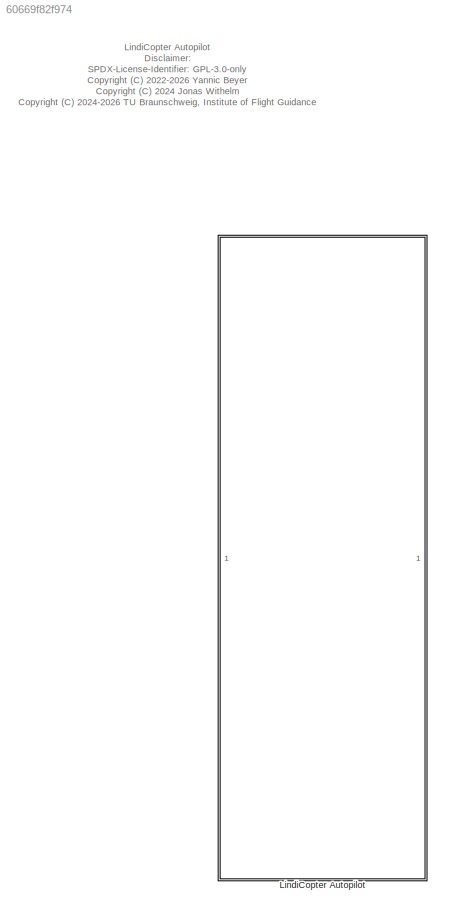
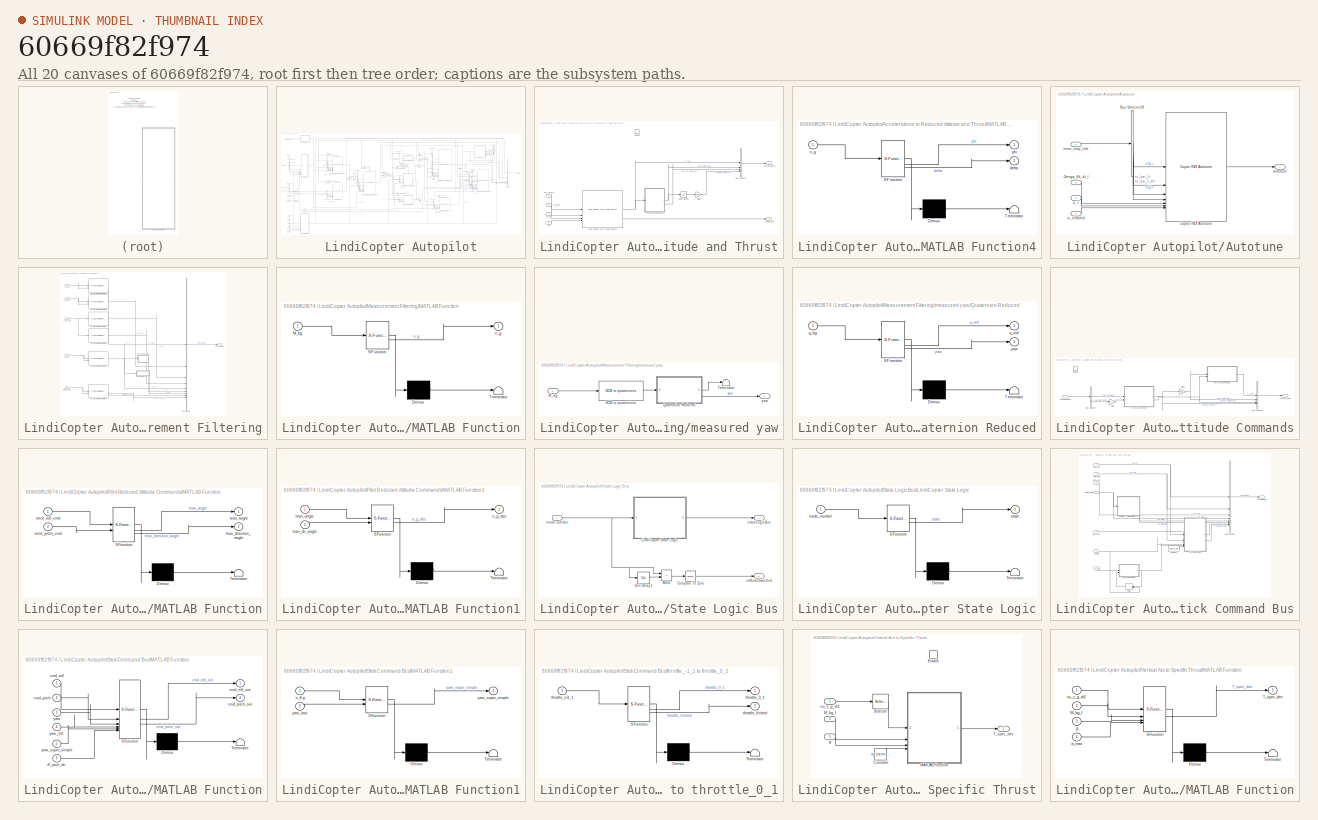
[diagram: thumbnail index - all 20 canvases of the model, root first then tree order]
MODEL slx_60669f82f974
KIND library
CONFIG AbsTol = auto
CONFIG EnableMultiTasking = off
CONFIG FixedStep = auto
CONFIG MaxStep = auto
CONFIG MinStep = auto
CONFIG RelTol = 1e-3
CONFIG SampleTimeConstraint = Unconstrained
CONFIG SolverName = VariableStepAuto
CONFIG StartTime = 0.0
CONFIG StopTime = 10.0
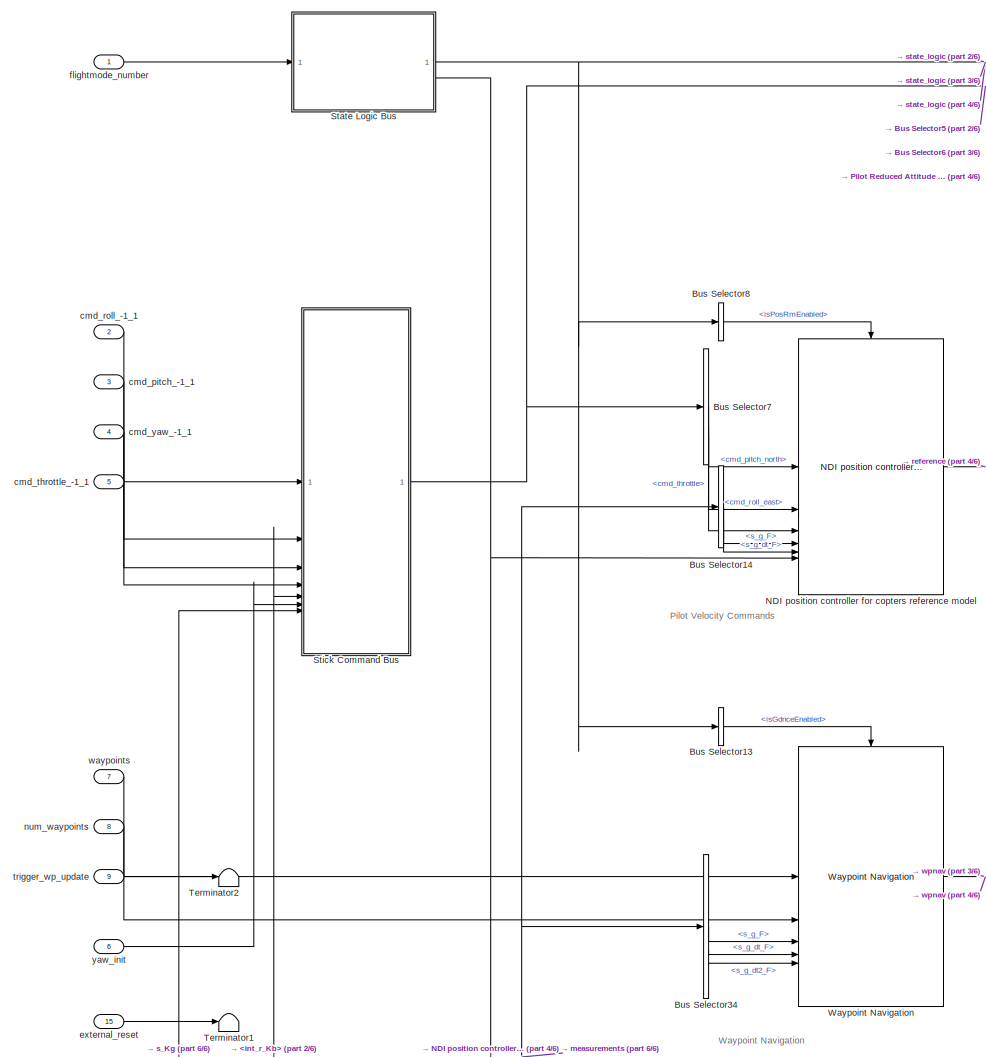
[diagram: LindiCopter Autopilot - part 1/6, middle left region]
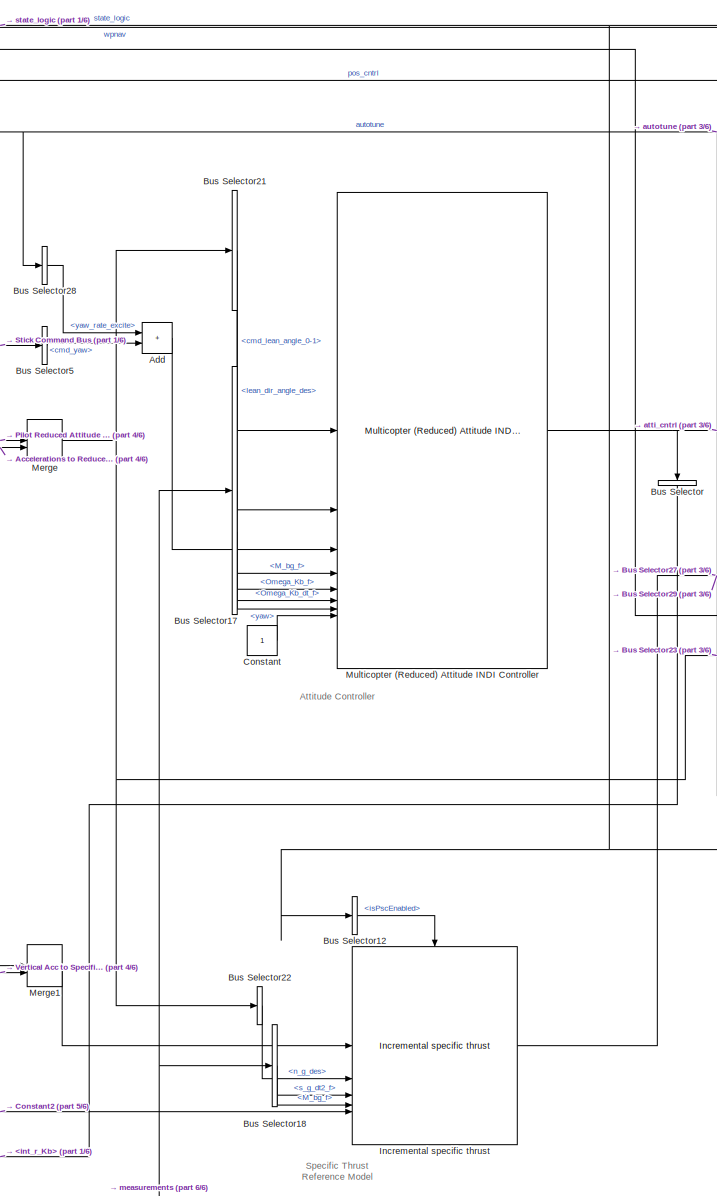
[diagram: LindiCopter Autopilot - part 2/6, center side, full height]
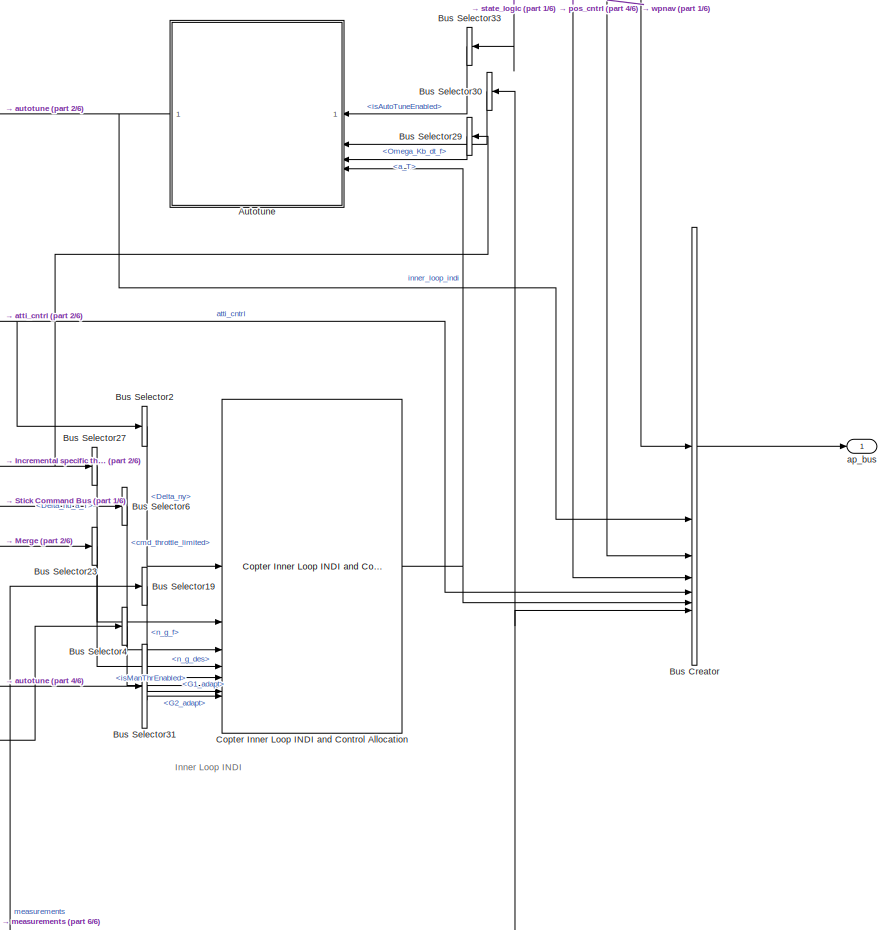
[diagram: LindiCopter Autopilot - part 3/6, middle right region]
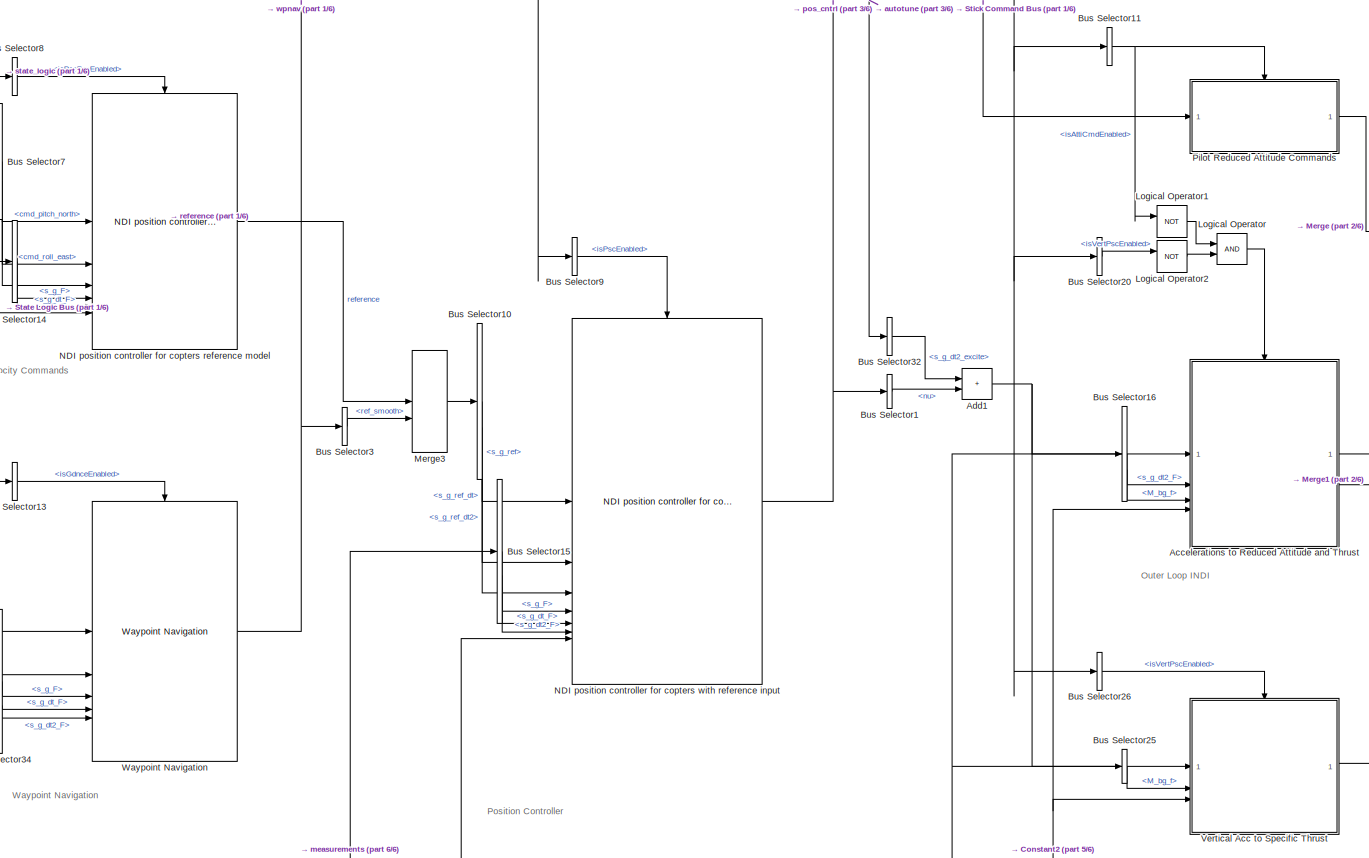
[diagram: LindiCopter Autopilot - part 4/6, central region]
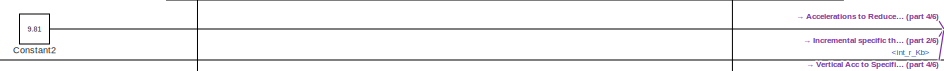
[diagram: LindiCopter Autopilot - part 5/6, bottom left region]
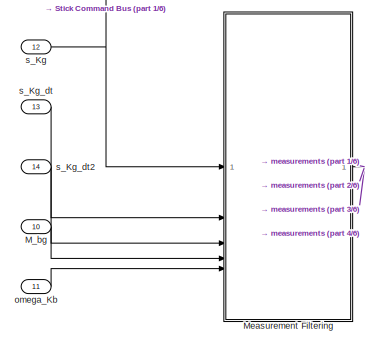
[diagram: LindiCopter Autopilot - part 6/6, bottom left region]
BLOCK [SubSystem] LindiCopter Autopilot
BLOCK [SubSystem] LindiCopter Autopilot/Accelerations to Reduced Attitude and Thrust
BLOCK [BusCreator] LindiCopter Autopilot/Accelerations to Reduced Attitude and Thrust/Bus Creator
  DisplayOption = bar
  InheritFromInputs = on
  Inputs = 4
BLOCK [EnablePort] LindiCopter Autopilot/Accelerations to Reduced Attitude and Thrust/Enable
BLOCK [Gain] LindiCopter Autopilot/Accelerations to Reduced Attitude and Thrust/Gain1
  Gain = 1/ap.atc.rm.leanmax
BLOCK [Reference] LindiCopter Autopilot/Accelerations to Reduced Attitude and Thrust/INDI Copter Acc 2 Lean Vector  REF=indi_lib/INDI Copter Acc 2 Lean Vector  (lib defined in slx_750e0a027594)
  SourceBlock = indi_lib/INDI Copter Acc 2 Lean Vector
  SourceProductName = LADAC
  SourceType = SubSystem
BLOCK [SubSystem] LindiCopter Autopilot/Accelerations to Reduced Attitude and Thrust/MATLAB Function4
  ErrorFcn = Stateflow.Translate.translate
  PermitHierarchicalResolution = ExplicitOnly
  SFBlockType = MATLAB Function
  TreatAsAtomicUnit = on
BLOCK [Demux] LindiCopter Autopilot/Accelerations to Reduced Attitude and Thrust/MATLAB Function4/ Demux 
  Outputs = 1
BLOCK [S-Function] LindiCopter Autopilot/Accelerations to Reduced Attitude and Thrust/MATLAB Function4/ SFunction 
  EnableBusSupport = off
  FunctionName = sf_sfun
  PortCounts = [1 3]
  SFcnIsStateOwnerBlock = off
  SFunctionDeploymentMode = off
  Tag = Stateflow S-Function 6
BLOCK [Terminator] LindiCopter Autopilot/Accelerations to Reduced Attitude and Thrust/MATLAB Function4/ Terminator 
BLOCK [Outport] LindiCopter Autopilot/Accelerations to Reduced Attitude and Thrust/MATLAB Function4/delta
  Port = 2
  VectorParamsAs1DForOutWhenUnconnected = off
BLOCK [Inport] LindiCopter Autopilot/Accelerations to Reduced Attitude and Thrust/MATLAB Function4/n_g
BLOCK [Outport] LindiCopter Autopilot/Accelerations to Reduced Attitude and Thrust/MATLAB Function4/phi
  VectorParamsAs1DForOutWhenUnconnected = off
BLOCK [Inport] LindiCopter Autopilot/Accelerations to Reduced Attitude and Thrust/M_bg
  Port = 3
BLOCK [Saturate] LindiCopter Autopilot/Accelerations to Reduced Attitude and Thrust/Saturation1
  LowerLimit = 0
  UpperLimit = ap.atc.rm.leanmax
BLOCK [Outport] LindiCopter Autopilot/Accelerations to Reduced Attitude and Thrust/T_spec_des
  Port = 2
  VectorParamsAs1DForOutWhenUnconnected = off
BLOCK [Inport] LindiCopter Autopilot/Accelerations to Reduced Attitude and Thrust/g
  Port = 4
BLOCK [Inport] LindiCopter Autopilot/Accelerations to Reduced Attitude and Thrust/nu_s_g_dt2
BLOCK [Outport] LindiCopter Autopilot/Accelerations to Reduced Attitude and Thrust/red_atti_des
  VectorParamsAs1DForOutWhenUnconnected = off
BLOCK [Inport] LindiCopter Autopilot/Accelerations to Reduced Attitude and Thrust/s_g_dt2
  Port = 2
BLOCK [Sum] LindiCopter Autopilot/Add
  IconShape = rectangular
BLOCK [Sum] LindiCopter Autopilot/Add1
  IconShape = rectangular
BLOCK [SubSystem] LindiCopter Autopilot/Autotune
BLOCK [BusSelector] LindiCopter Autopilot/Autotune/Bus Selector28
  OutputSignals = G1,G2,u_bar_f,u_bar_f_dt
BLOCK [Reference] LindiCopter Autopilot/Autotune/Copter INDI Autotune  REF=indi_lib/Copter INDI Autotune  (lib defined in slx_750e0a027594)
  SourceBlock = indi_lib/Copter INDI Autotune
  SourceProductName = LADAC
BLOCK [Inport] LindiCopter Autopilot/Autotune/Omega_Kb_dt_f
  Port = 2
BLOCK [Inport] LindiCopter Autopilot/Autotune/a_T
  Port = 3
BLOCK [Outport] LindiCopter Autopilot/Autotune/autotune
  VectorParamsAs1DForOutWhenUnconnected = off
BLOCK [Inport] LindiCopter Autopilot/Autotune/inner_loop_indi
  Port = 4
BLOCK [Inport] LindiCopter Autopilot/Autotune/is_enabled
BLOCK [BusCreator] LindiCopter Autopilot/Bus Creator
  DisplayOption = bar
  InheritFromInputs = on
  Inputs = 7
BLOCK [BusSelector] LindiCopter Autopilot/Bus Selector
  NameLocation = left
  OutputSignals = reference.yaw.int_r_Kb
BLOCK [BusSelector] LindiCopter Autopilot/Bus Selector1
  OutputSignals = pseudo_control.nu
BLOCK [BusSelector] LindiCopter Autopilot/Bus Selector10
  OutputSignals = s_g_ref,s_g_ref_dt,s_g_ref_dt2
BLOCK [BusSelector] LindiCopter Autopilot/Bus Selector11
  OutputSignals = isAttiCmdEnabled
BLOCK [BusSelector] LindiCopter Autopilot/Bus Selector12
  OutputSignals = isPscEnabled
BLOCK [BusSelector] LindiCopter Autopilot/Bus Selector13
  OutputSignals = isGdnceEnabled
BLOCK [BusSelector] LindiCopter Autopilot/Bus Selector14
  OutputSignals = s_g_F,s_g_dt_F
BLOCK [BusSelector] LindiCopter Autopilot/Bus Selector15
  OutputSignals = s_g_F,s_g_dt_F,s_g_dt2_F
BLOCK [BusSelector] LindiCopter Autopilot/Bus Selector16
  OutputSignals = s_g_dt2_F,M_bg_f
BLOCK [BusSelector] LindiCopter Autopilot/Bus Selector17
  OutputSignals = M_bg_f,Omega_Kb_f,Omega_Kb_dt_f,yaw
BLOCK [BusSelector] LindiCopter Autopilot/Bus Selector18
  OutputSignals = s_g_dt2_f,M_bg_f
BLOCK [BusSelector] LindiCopter Autopilot/Bus Selector19
  OutputSignals = n_g_f
BLOCK [BusSelector] LindiCopter Autopilot/Bus Selector2
  OutputSignals = pseudo_control.Delta_ny
BLOCK [BusSelector] LindiCopter Autopilot/Bus Selector20
  OutputSignals = isVertPscEnabled
BLOCK [BusSelector] LindiCopter Autopilot/Bus Selector21
  OutputSignals = cmd_lean_angle_0-1,lean_dir_angle_des
BLOCK [BusSelector] LindiCopter Autopilot/Bus Selector22
  OutputSignals = n_g_des
BLOCK [BusSelector] LindiCopter Autopilot/Bus Selector23
  OutputSignals = n_g_des
BLOCK [BusSelector] LindiCopter Autopilot/Bus Selector25
  OutputSignals = M_bg_f
BLOCK [BusSelector] LindiCopter Autopilot/Bus Selector26
  OutputSignals = isVertPscEnabled
BLOCK [BusSelector] LindiCopter Autopilot/Bus Selector27
  OutputSignals = Delta_nu_a_T
BLOCK [BusSelector] LindiCopter Autopilot/Bus Selector28
  OutputSignals = excite.yaw_rate_excite
BLOCK [BusSelector] LindiCopter Autopilot/Bus Selector29
  NameLocation = top
  OutputSignals = a_T
BLOCK [BusSelector] LindiCopter Autopilot/Bus Selector3
  OutputSignals = ref_smooth
BLOCK [BusSelector] LindiCopter Autopilot/Bus Selector30
  NameLocation = top
  OutputSignals = Omega_Kb_dt_f
BLOCK [BusSelector] LindiCopter Autopilot/Bus Selector31
  OutputSignals = G1_adapt,G2_adapt
BLOCK [BusSelector] LindiCopter Autopilot/Bus Selector32
  OutputSignals = excite.s_g_dt2_excite
BLOCK [BusSelector] LindiCopter Autopilot/Bus Selector33
  NameLocation = top
  OutputSignals = isAutoTuneEnabled
BLOCK [BusSelector] LindiCopter Autopilot/Bus Selector34
  OutputSignals = s_g_F,s_g_dt_F,s_g_dt2_F
BLOCK [BusSelector] LindiCopter Autopilot/Bus Selector4
  OutputSignals = isManThrEnabled
BLOCK [BusSelector] LindiCopter Autopilot/Bus Selector5
  OutputSignals = cmd_yaw
BLOCK [BusSelector] LindiCopter Autopilot/Bus Selector6
  OutputSignals = cmd_throttle_limited
BLOCK [BusSelector] LindiCopter Autopilot/Bus Selector7
  OutputSignals = cmd_pitch_north,cmd_roll_east,cmd_throttle
BLOCK [BusSelector] LindiCopter Autopilot/Bus Selector8
  OutputSignals = isPosRmEnabled
BLOCK [BusSelector] LindiCopter Autopilot/Bus Selector9
  OutputSignals = isPscEnabled
BLOCK [Constant] LindiCopter Autopilot/Constant
BLOCK [Constant] LindiCopter Autopilot/Constant2
  Value = 9.81
BLOCK [Reference] LindiCopter Autopilot/Copter Inner Loop INDI and Control Allocation  REF=indi_lib/Copter Inner Loop INDI and Control Allocation  (lib defined in slx_750e0a027594)
  SourceBlock = indi_lib/Copter Inner Loop INDI and Control Allocation
  SourceProductName = LADAC
BLOCK [Reference] LindiCopter Autopilot/Incremental specific thrust  REF=indi_lib/Incremental specific thrust  (lib defined in slx_750e0a027594)
  SourceBlock = indi_lib/Incremental specific thrust
  SourceProductName = LADAC
BLOCK [Logic] LindiCopter Autopilot/Logical Operator
  AllPortsSameDT = off
  OutDataTypeStr = boolean
BLOCK [Logic] LindiCopter Autopilot/Logical Operator1
  AllPortsSameDT = off
  Operator = NOT
  OutDataTypeStr = boolean
BLOCK [Logic] LindiCopter Autopilot/Logical Operator2
  AllPortsSameDT = off
  Operator = NOT
  OutDataTypeStr = boolean
BLOCK [Inport] LindiCopter Autopilot/M_bg
  Port = 10
  SampleTime = ap_notune.ts
BLOCK [SubSystem] LindiCopter Autopilot/Measurement Filtering
BLOCK [BusCreator] LindiCopter Autopilot/Measurement Filtering/Bus Creator
  DisplayOption = bar
  InheritFromInputs = on
  Inputs = 9
BLOCK [SubSystem] LindiCopter Autopilot/Measurement Filtering/MATLAB Function
  ErrorFcn = Stateflow.Translate.translate
  PermitHierarchicalResolution = ExplicitOnly
  SFBlockType = MATLAB Function
  TreatAsAtomicUnit = on
BLOCK [Demux] LindiCopter Autopilot/Measurement Filtering/MATLAB Function/ Demux 
  Outputs = 1
BLOCK [S-Function] LindiCopter Autopilot/Measurement Filtering/MATLAB Function/ SFunction 
  EnableBusSupport = off
  FunctionName = sf_sfun
  PortCounts = [1 2]
  SFcnIsStateOwnerBlock = off
  SFunctionDeploymentMode = off
  Tag = Stateflow S-Function 1
BLOCK [Terminator] LindiCopter Autopilot/Measurement Filtering/MATLAB Function/ Terminator 
BLOCK [Inport] LindiCopter Autopilot/Measurement Filtering/MATLAB Function/M_bg
BLOCK [Outport] LindiCopter Autopilot/Measurement Filtering/MATLAB Function/n_g
  VectorParamsAs1DForOutWhenUnconnected = off
BLOCK [Inport] LindiCopter Autopilot/Measurement Filtering/M_bg
  Port = 4
BLOCK [Inport] LindiCopter Autopilot/Measurement Filtering/Omega_Kb
  Port = 5
BLOCK [Reference] LindiCopter Autopilot/Measurement Filtering/PT2 discrete with saturation  REF=filters_lib/PT2 discrete with saturation  (lib defined in slx_a584fcc4ebc5)
  SourceBlock = filters_lib/PT2 discrete with saturation
  SourceProductName = LADAC
  SourceType = PT2 discrete with saturation
BLOCK [Reference] LindiCopter Autopilot/Measurement Filtering/PT2 discrete with saturation1  REF=filters_lib/PT2 discrete with saturation  (lib defined in slx_a584fcc4ebc5)
  SourceBlock = filters_lib/PT2 discrete with saturation
  SourceProductName = LADAC
  SourceType = PT2 discrete with saturation
BLOCK [Reference] LindiCopter Autopilot/Measurement Filtering/PT2 discrete with saturation2  REF=filters_lib/PT2 discrete with saturation  (lib defined in slx_a584fcc4ebc5)
  SourceBlock = filters_lib/PT2 discrete with saturation
  SourceProductName = LADAC
  SourceType = PT2 discrete with saturation
BLOCK [Reference] LindiCopter Autopilot/Measurement Filtering/PT2 discrete with saturation3  REF=filters_lib/PT2 discrete with saturation  (lib defined in slx_a584fcc4ebc5)
  SourceBlock = filters_lib/PT2 discrete with saturation
  SourceProductName = LADAC
  SourceType = PT2 discrete with saturation
BLOCK [Reference] LindiCopter Autopilot/Measurement Filtering/PT2 discrete with saturation4  REF=filters_lib/PT2 discrete with saturation  (lib defined in slx_a584fcc4ebc5)
  SourceBlock = filters_lib/PT2 discrete with saturation
  SourceProductName = LADAC
  SourceType = PT2 discrete with saturation
BLOCK [Reference] LindiCopter Autopilot/Measurement Filtering/PT2 discrete with saturation5  REF=filters_lib/PT2 discrete with saturation  (lib defined in slx_a584fcc4ebc5)
  SourceBlock = filters_lib/PT2 discrete with saturation
  SourceProductName = LADAC
  SourceType = PT2 discrete with saturation
BLOCK [Outport] LindiCopter Autopilot/Measurement Filtering/measureBus
  VectorParamsAs1DForOutWhenUnconnected = off
BLOCK [SubSystem] LindiCopter Autopilot/Measurement Filtering/measured yaw
BLOCK [Reference] LindiCopter Autopilot/Measurement Filtering/measured yaw/DCM to quaternions  REF=axes_transformation_lib/DCM to quaternions  (lib defined in slx_69e2413c78c0)
  SourceBlock = axes_transformation_lib/DCM to quaternions
  SourceProductName = LADAC
  SourceType = SubSystem
BLOCK [Inport] LindiCopter Autopilot/Measurement Filtering/measured yaw/M_bg
BLOCK [SubSystem] LindiCopter Autopilot/Measurement Filtering/measured yaw/Quaternion Reduced
  ErrorFcn = Stateflow.Translate.translate
  PermitHierarchicalResolution = ExplicitOnly
  SFBlockType = MATLAB Function
  TreatAsAtomicUnit = on
BLOCK [Demux] LindiCopter Autopilot/Measurement Filtering/measured yaw/Quaternion Reduced/ Demux 
  Outputs = 1
BLOCK [S-Function] LindiCopter Autopilot/Measurement Filtering/measured yaw/Quaternion Reduced/ SFunction 
  EnableBusSupport = off
  FunctionName = sf_sfun
  PortCounts = [1 3]
  SFcnIsStateOwnerBlock = off
  SFunctionDeploymentMode = off
  Tag = Stateflow S-Function 32
BLOCK [Terminator] LindiCopter Autopilot/Measurement Filtering/measured yaw/Quaternion Reduced/ Terminator 
BLOCK [Inport] LindiCopter Autopilot/Measurement Filtering/measured yaw/Quaternion Reduced/q_bg
BLOCK [Outport] LindiCopter Autopilot/Measurement Filtering/measured yaw/Quaternion Reduced/q_red
  VectorParamsAs1DForOutWhenUnconnected = off
BLOCK [Outport] LindiCopter Autopilot/Measurement Filtering/measured yaw/Quaternion Reduced/yaw
  Port = 2
  VectorParamsAs1DForOutWhenUnconnected = off
BLOCK [Terminator] LindiCopter Autopilot/Measurement Filtering/measured yaw/Terminator
BLOCK [Outport] LindiCopter Autopilot/Measurement Filtering/measured yaw/yaw
  VectorParamsAs1DForOutWhenUnconnected = off
BLOCK [Inport] LindiCopter Autopilot/Measurement Filtering/s_Kg
BLOCK [Inport] LindiCopter Autopilot/Measurement Filtering/s_Kg_dt
  Port = 2
BLOCK [Inport] LindiCopter Autopilot/Measurement Filtering/s_Kg_dt2
  Port = 3
BLOCK [Merge] LindiCopter Autopilot/Merge
BLOCK [Merge] LindiCopter Autopilot/Merge1
BLOCK [Merge] LindiCopter Autopilot/Merge3
BLOCK [Reference] LindiCopter Autopilot/Multicopter (Reduced) Attitude INDI Controller  REF=cntrlAttiRedIndi_lib/Multicopter (Reduced) Attitude INDI Controller
  SourceBlock = cntrlAttiRedIndi_lib/Multicopter (Reduced) Attitude INDI Controller
  SourceProductName = LADAC
BLOCK [Reference] LindiCopter Autopilot/NDI position controller for copters reference model  REF=cntrlPosNdi_lib/NDI position controller for copters
reference model
  SourceBlock = cntrlPosNdi_lib/NDI position controller for copters\nreference model
  SourceProductName = LADAC
BLOCK [Reference] LindiCopter Autopilot/NDI position controller for copters with reference input  REF=cntrlPosNdi_lib/NDI position controller for copters
with reference input
  SourceBlock = cntrlPosNdi_lib/NDI position controller for copters\nwith reference input
  SourceProductName = LADAC
BLOCK [SubSystem] LindiCopter Autopilot/Pilot Reduced Attitude Commands
BLOCK [BusCreator] LindiCopter Autopilot/Pilot Reduced Attitude Commands/Bus Creator
  DisplayOption = bar
  InheritFromInputs = on
  Inputs = 4
BLOCK [BusSelector] LindiCopter Autopilot/Pilot Reduced Attitude Commands/Bus Selector
  OutputSignals = cmd_roll_east,cmd_pitch_north
BLOCK [EnablePort] LindiCopter Autopilot/Pilot Reduced Attitude Commands/Enable
BLOCK [Gain] LindiCopter Autopilot/Pilot Reduced Attitude Commands/Gain
  Gain = -1
BLOCK [Gain] LindiCopter Autopilot/Pilot Reduced Attitude Commands/Gain1
  Gain = ap.atc.rm.leanmax
BLOCK [SubSystem] LindiCopter Autopilot/Pilot Reduced Attitude Commands/MATLAB Function
  ErrorFcn = Stateflow.Translate.translate
  PermitHierarchicalResolution = ExplicitOnly
  SFBlockType = MATLAB Function
  TreatAsAtomicUnit = on
BLOCK [Demux] LindiCopter Autopilot/Pilot Reduced Attitude Commands/MATLAB Function/ Demux 
  Outputs = 1
BLOCK [S-Function] LindiCopter Autopilot/Pilot Reduced Attitude Commands/MATLAB Function/ SFunction 
  EnableBusSupport = off
  FunctionName = sf_sfun
  PortCounts = [2 3]
  SFcnIsStateOwnerBlock = off
  SFunctionDeploymentMode = off
  Tag = Stateflow S-Function 3
BLOCK [Terminator] LindiCopter Autopilot/Pilot Reduced Attitude Commands/MATLAB Function/ Terminator 
BLOCK [Outport] LindiCopter Autopilot/Pilot Reduced Attitude Commands/MATLAB Function/lean_angle
  VectorParamsAs1DForOutWhenUnconnected = off
BLOCK [Outport] LindiCopter Autopilot/Pilot Reduced Attitude Commands/MATLAB Function/lean_direction_angle
  Port = 2
  VectorParamsAs1DForOutWhenUnconnected = off
BLOCK [Inport] LindiCopter Autopilot/Pilot Reduced Attitude Commands/MATLAB Function/stick_pitch_cmd
  Port = 2
BLOCK [Inport] LindiCopter Autopilot/Pilot Reduced Attitude Commands/MATLAB Function/stick_roll_cmd
BLOCK [SubSystem] LindiCopter Autopilot/Pilot Reduced Attitude Commands/MATLAB Function1
  ErrorFcn = Stateflow.Translate.translate
  PermitHierarchicalResolution = ExplicitOnly
  SFBlockType = MATLAB Function
  TreatAsAtomicUnit = on
BLOCK [Demux] LindiCopter Autopilot/Pilot Reduced Attitude Commands/MATLAB Function1/ Demux 
  Outputs = 1
BLOCK [S-Function] LindiCopter Autopilot/Pilot Reduced Attitude Commands/MATLAB Function1/ SFunction 
  EnableBusSupport = off
  FunctionName = sf_sfun
  PortCounts = [2 2]
  SFcnIsStateOwnerBlock = off
  SFunctionDeploymentMode = off
  Tag = Stateflow S-Function 4
BLOCK [Terminator] LindiCopter Autopilot/Pilot Reduced Attitude Commands/MATLAB Function1/ Terminator 
BLOCK [Inport] LindiCopter Autopilot/Pilot Reduced Attitude Commands/MATLAB Function1/lean_angle
BLOCK [Inport] LindiCopter Autopilot/Pilot Reduced Attitude Commands/MATLAB Function1/lean_dir_angle
  Port = 2
BLOCK [Outport] LindiCopter Autopilot/Pilot Reduced Attitude Commands/MATLAB Function1/n_g_des
  VectorParamsAs1DForOutWhenUnconnected = off
BLOCK [Outport] LindiCopter Autopilot/Pilot Reduced Attitude Commands/red_atti_des
  VectorParamsAs1DForOutWhenUnconnected = off
BLOCK [Inport] LindiCopter Autopilot/Pilot Reduced Attitude Commands/stickCmdBus
BLOCK [SubSystem] LindiCopter Autopilot/State Logic Bus
BLOCK [Sum] LindiCopter Autopilot/State Logic Bus/Add2
  IconShape = rectangular
  Inputs = +-
BLOCK [Reference] LindiCopter Autopilot/State Logic Bus/Compare To Zero  REF=simulink/Logic and Bit
Operations/Compare
To Zero
  SourceBlock = simulink/Logic and Bit\nOperations/Compare\nTo Zero
  SourceType = Compare To Zero
BLOCK [SubSystem] LindiCopter Autopilot/State Logic Bus/LindiCopter State Logic
  ErrorFcn = Stateflow.Translate.translate
  PermitHierarchicalResolution = ExplicitOnly
  SFBlockType = MATLAB Function
  TreatAsAtomicUnit = on
BLOCK [Demux] LindiCopter Autopilot/State Logic Bus/LindiCopter State Logic/ Demux 
  Outputs = 1
BLOCK [S-Function] LindiCopter Autopilot/State Logic Bus/LindiCopter State Logic/ SFunction 
  EnableBusSupport = off
  FunctionName = sf_sfun
  PortCounts = [1 2]
  SFcnIsStateOwnerBlock = off
  SFunctionDeploymentMode = off
  Tag = Stateflow S-Function 5
BLOCK [Terminator] LindiCopter Autopilot/State Logic Bus/LindiCopter State Logic/ Terminator 
BLOCK [Inport] LindiCopter Autopilot/State Logic Bus/LindiCopter State Logic/mode_number
BLOCK [Outport] LindiCopter Autopilot/State Logic Bus/LindiCopter State Logic/state
  VectorParamsAs1DForOutWhenUnconnected = off
BLOCK [UnitDelay] LindiCopter Autopilot/State Logic Bus/Unit Delay1
  HasFrameUpgradeWarning = on
  SampleTime = -1
BLOCK [Outport] LindiCopter Autopilot/State Logic Bus/isModeSwitched
  Port = 2
  VectorParamsAs1DForOutWhenUnconnected = off
BLOCK [Inport] LindiCopter Autopilot/State Logic Bus/mode number
BLOCK [Outport] LindiCopter Autopilot/State Logic Bus/stateLogicBus
  VectorParamsAs1DForOutWhenUnconnected = off
BLOCK [SubSystem] LindiCopter Autopilot/Stick Command Bus
BLOCK [BusCreator] LindiCopter Autopilot/Stick Command Bus/Bus Creator1
  DisplayOption = bar
  InheritFromInputs = on
  Inputs = 8
BLOCK [Constant] LindiCopter Autopilot/Stick Command Bus/Constant
  Value = rll_ptch_dir
BLOCK [Delay] LindiCopter Autopilot/Stick Command Bus/Delay
  DelayLength = 1
  InitialConditionSource = Input port
  InputPortMap = u0,p4
  NameLocation = top
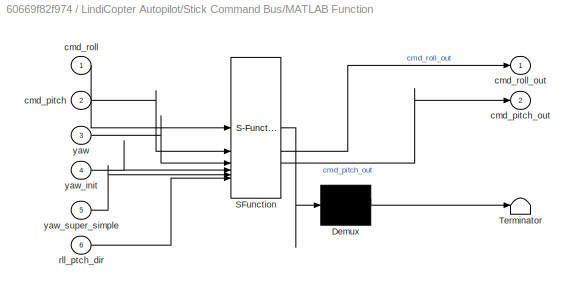
BLOCK [SubSystem] LindiCopter Autopilot/Stick Command Bus/MATLAB Function
  ErrorFcn = Stateflow.Translate.translate
  PermitHierarchicalResolution = ExplicitOnly
  SFBlockType = MATLAB Function
  TreatAsAtomicUnit = on
BLOCK [Demux] LindiCopter Autopilot/Stick Command Bus/MATLAB Function/ Demux 
  Outputs = 1
BLOCK [S-Function] LindiCopter Autopilot/Stick Command Bus/MATLAB Function/ SFunction 
  EnableBusSupport = off
  FunctionName = sf_sfun
  PortCounts = [6 3]
  SFcnIsStateOwnerBlock = off
  SFunctionDeploymentMode = off
  Tag = Stateflow S-Function 10
BLOCK [Terminator] LindiCopter Autopilot/Stick Command Bus/MATLAB Function/ Terminator 
BLOCK [Inport] LindiCopter Autopilot/Stick Command Bus/MATLAB Function/cmd_pitch
  Port = 2
BLOCK [Outport] LindiCopter Autopilot/Stick Command Bus/MATLAB Function/cmd_pitch_out
  Port = 2
  VectorParamsAs1DForOutWhenUnconnected = off
BLOCK [Inport] LindiCopter Autopilot/Stick Command Bus/MATLAB Function/cmd_roll
BLOCK [Outport] LindiCopter Autopilot/Stick Command Bus/MATLAB Function/cmd_roll_out
  VectorParamsAs1DForOutWhenUnconnected = off
BLOCK [Inport] LindiCopter Autopilot/Stick Command Bus/MATLAB Function/rll_ptch_dir
  Port = 6
BLOCK [Inport] LindiCopter Autopilot/Stick Command Bus/MATLAB Function/yaw
  Port = 3
BLOCK [Inport] LindiCopter Autopilot/Stick Command Bus/MATLAB Function/yaw_init
  Port = 4
BLOCK [Inport] LindiCopter Autopilot/Stick Command Bus/MATLAB Function/yaw_super_simple
  Port = 5
BLOCK [SubSystem] LindiCopter Autopilot/Stick Command Bus/MATLAB Function1
  ErrorFcn = Stateflow.Translate.translate
  PermitHierarchicalResolution = ExplicitOnly
  SFBlockType = MATLAB Function
  TreatAsAtomicUnit = on
BLOCK [Demux] LindiCopter Autopilot/Stick Command Bus/MATLAB Function1/ Demux 
  Outputs = 1
BLOCK [S-Function] LindiCopter Autopilot/Stick Command Bus/MATLAB Function1/ SFunction 
  EnableBusSupport = off
  FunctionName = sf_sfun
  PortCounts = [2 2]
  SFcnIsStateOwnerBlock = off
  SFunctionDeploymentMode = off
  Tag = Stateflow S-Function 2
BLOCK [Terminator] LindiCopter Autopilot/Stick Command Bus/MATLAB Function1/ Terminator 
BLOCK [Inport] LindiCopter Autopilot/Stick Command Bus/MATLAB Function1/s_Kg
BLOCK [Inport] LindiCopter Autopilot/Stick Command Bus/MATLAB Function1/yaw_last
  Port = 2
BLOCK [Outport] LindiCopter Autopilot/Stick Command Bus/MATLAB Function1/yaw_super_simple
  VectorParamsAs1DForOutWhenUnconnected = off
BLOCK [Inport] LindiCopter Autopilot/Stick Command Bus/cmd_pitch
  Port = 2
BLOCK [Inport] LindiCopter Autopilot/Stick Command Bus/cmd_roll
BLOCK [Inport] LindiCopter Autopilot/Stick Command Bus/cmd_throttle
  Port = 4
BLOCK [Inport] LindiCopter Autopilot/Stick Command Bus/cmd_yaw
  Port = 3
BLOCK [Inport] LindiCopter Autopilot/Stick Command Bus/int_r_ref
  Port = 5
BLOCK [Inport] LindiCopter Autopilot/Stick Command Bus/s_Kg
  Port = 7
BLOCK [Outport] LindiCopter Autopilot/Stick Command Bus/stickCmdBus
  VectorParamsAs1DForOutWhenUnconnected = off
BLOCK [SubSystem] LindiCopter Autopilot/Stick Command Bus/throttle_-1_1 to throttle_0_1
  ErrorFcn = Stateflow.Translate.translate
  PermitHierarchicalResolution = ExplicitOnly
  SFBlockType = MATLAB Function
  TreatAsAtomicUnit = on
BLOCK [Demux] LindiCopter Autopilot/Stick Command Bus/throttle_-1_1 to throttle_0_1/ Demux 
  Outputs = 1
BLOCK [S-Function] LindiCopter Autopilot/Stick Command Bus/throttle_-1_1 to throttle_0_1/ SFunction 
  EnableBusSupport = off
  FunctionName = sf_sfun
  Parameters = thr
  PortCounts = [1 3]
  SFcnIsStateOwnerBlock = off
  SFunctionDeploymentMode = off
  Tag = Stateflow S-Function 8
BLOCK [Terminator] LindiCopter Autopilot/Stick Command Bus/throttle_-1_1 to throttle_0_1/ Terminator 
BLOCK [Outport] LindiCopter Autopilot/Stick Command Bus/throttle_-1_1 to throttle_0_1/throttle_0_1
  VectorParamsAs1DForOutWhenUnconnected = off
BLOCK [Outport] LindiCopter Autopilot/Stick Command Bus/throttle_-1_1 to throttle_0_1/throttle_limited
  Port = 2
  VectorParamsAs1DForOutWhenUnconnected = off
BLOCK [Inport] LindiCopter Autopilot/Stick Command Bus/throttle_-1_1 to throttle_0_1/throttle_m1_1
BLOCK [Inport] LindiCopter Autopilot/Stick Command Bus/yaw_init
  Port = 6
BLOCK [Terminator] LindiCopter Autopilot/Terminator1
BLOCK [Terminator] LindiCopter Autopilot/Terminator2
BLOCK [SubSystem] LindiCopter Autopilot/Vertical Acc to Specific Thrust
BLOCK [Constant] LindiCopter Autopilot/Vertical Acc to Specific Thrust/Constant
  Value = ap.psc.rm.accumax
BLOCK [EnablePort] LindiCopter Autopilot/Vertical Acc to Specific Thrust/Enable
BLOCK [SubSystem] LindiCopter Autopilot/Vertical Acc to Specific Thrust/MATLAB Function
  ErrorFcn = Stateflow.Translate.translate
  PermitHierarchicalResolution = ExplicitOnly
  SFBlockType = MATLAB Function
  TreatAsAtomicUnit = on
BLOCK [Demux] LindiCopter Autopilot/Vertical Acc to Specific Thrust/MATLAB Function/ Demux 
  Outputs = 1
BLOCK [S-Function] LindiCopter Autopilot/Vertical Acc to Specific Thrust/MATLAB Function/ SFunction 
  EnableBusSupport = off
  FunctionName = sf_sfun
  PortCounts = [4 2]
  SFcnIsStateOwnerBlock = off
  SFunctionDeploymentMode = off
  Tag = Stateflow S-Function 7
BLOCK [Terminator] LindiCopter Autopilot/Vertical Acc to Specific Thrust/MATLAB Function/ Terminator 
BLOCK [Inport] LindiCopter Autopilot/Vertical Acc to Specific Thrust/MATLAB Function/M_bg_f
  Port = 2
BLOCK [Outport] LindiCopter Autopilot/Vertical Acc to Specific Thrust/MATLAB Function/T_spec_des
  VectorParamsAs1DForOutWhenUnconnected = off
BLOCK [Inport] LindiCopter Autopilot/Vertical Acc to Specific Thrust/MATLAB Function/a_max
  Port = 4
BLOCK [Inport] LindiCopter Autopilot/Vertical Acc to Specific Thrust/MATLAB Function/g
  Port = 3
BLOCK [Inport] LindiCopter Autopilot/Vertical Acc to Specific Thrust/MATLAB Function/nu_z_g_dt2
BLOCK [Inport] LindiCopter Autopilot/Vertical Acc to Specific Thrust/M_bg_f
  Port = 2
BLOCK [Selector] LindiCopter Autopilot/Vertical Acc to Specific Thrust/Selector
  IndexOptions = Index vector (dialog)
  Indices = 3
  InputPortWidth = 3
  OutputSizes = 1
BLOCK [Outport] LindiCopter Autopilot/Vertical Acc to Specific Thrust/T_spec_des
  VectorParamsAs1DForOutWhenUnconnected = off
BLOCK [Inport] LindiCopter Autopilot/Vertical Acc to Specific Thrust/g
  Port = 3
BLOCK [Inport] LindiCopter Autopilot/Vertical Acc to Specific Thrust/nu_z_g_dt2
BLOCK [Reference] LindiCopter Autopilot/Waypoint Navigation  REF=wpnav_lib/Waypoint Navigation  (lib defined in slx_a81cf31c6754)
  SourceBlock = wpnav_lib/Waypoint Navigation
  SourceProductName = LADAC
BLOCK [Outport] LindiCopter Autopilot/ap_bus
  SampleTime = ap_notune.ts
  SamplingMode = Sample based
  SignalType = real
  VectorParamsAs1DForOutWhenUnconnected = off
BLOCK [Inport] LindiCopter Autopilot/cmd_pitch_-1_1
  Port = 3
  SampleTime = ap_notune.ts
BLOCK [Inport] LindiCopter Autopilot/cmd_roll_-1_1
  Port = 2
  SampleTime = ap_notune.ts
BLOCK [Inport] LindiCopter Autopilot/cmd_throttle_-1_1
  Port = 5
  SampleTime = ap_notune.ts
BLOCK [Inport] LindiCopter Autopilot/cmd_yaw_-1_1
  Port = 4
  SampleTime = ap_notune.ts
BLOCK [Inport] LindiCopter Autopilot/external_reset
  Port = 15
  SampleTime = ap_notune.ts
BLOCK [Inport] LindiCopter Autopilot/flightmode_number
  SampleTime = ap_notune.ts
BLOCK [Inport] LindiCopter Autopilot/num_waypoints
  Port = 8
  SampleTime = ap_notune.ts
BLOCK [Inport] LindiCopter Autopilot/omega_Kb
  Port = 11
  SampleTime = ap_notune.ts
BLOCK [Inport] LindiCopter Autopilot/s_Kg
  Port = 12
  SampleTime = ap_notune.ts
BLOCK [Inport] LindiCopter Autopilot/s_Kg_dt
  Port = 13
  SampleTime = ap_notune.ts
BLOCK [Inport] LindiCopter Autopilot/s_Kg_dt2
  Port = 14
  SampleTime = ap_notune.ts
BLOCK [Inport] LindiCopter Autopilot/trigger_wp_update
  Port = 9
  SampleTime = ap_notune.ts
BLOCK [Inport] LindiCopter Autopilot/waypoints
  Port = 7
  SampleTime = ap_notune.ts
BLOCK [Inport] LindiCopter Autopilot/yaw_init
  Port = 6
  SampleTime = ap_notune.ts
ANNOTATION (root): LindiCopter Autopilot Disclaimer: SPDX-License-Identifier: GPL-3.0-only <copyright redacted>
ANNOTATION LindiCopter Autopilot: Specific Thrust Reference Model
ANNOTATION LindiCopter Autopilot: Attitude Controller
ANNOTATION LindiCopter Autopilot: Inner Loop INDI
ANNOTATION LindiCopter Autopilot: Outer Loop INDI
ANNOTATION LindiCopter Autopilot: Pilot Velocity Commands
ANNOTATION LindiCopter Autopilot: Position Controller
ANNOTATION LindiCopter Autopilot: Waypoint Navigation
LINE LindiCopter Autopilot/Accelerations to Reduced Attitude and Thrust/Bus Creator:1 -> LindiCopter Autopilot/Accelerations to Reduced Attitude and Thrust/red_atti_des:1
LINE LindiCopter Autopilot/Accelerations to Reduced Attitude and Thrust/Gain1:1 -> LindiCopter Autopilot/Accelerations to Reduced Attitude and Thrust/Bus Creator:4
NET LindiCopter Autopilot/Accelerations to Reduced Attitude and Thrust/INDI Copter Acc 2 Lean Vector:1 -> LindiCopter Autopilot/Accelerations to Reduced Attitude and Thrust/Bus Creator:1, LindiCopter Autopilot/Accelerations to Reduced Attitude and Thrust/MATLAB Function4:1
LINE LindiCopter Autopilot/Accelerations to Reduced Attitude and Thrust/INDI Copter Acc 2 Lean Vector:2 -> LindiCopter Autopilot/Accelerations to Reduced Attitude and Thrust/T_spec_des:1
NET LindiCopter Autopilot/Accelerations to Reduced Attitude and Thrust/MATLAB Function4:1 -> LindiCopter Autopilot/Accelerations to Reduced Attitude and Thrust/Bus Creator:2, LindiCopter Autopilot/Accelerations to Reduced Attitude and Thrust/Saturation1:1
LINE LindiCopter Autopilot/Accelerations to Reduced Attitude and Thrust/MATLAB Function4:2 -> LindiCopter Autopilot/Accelerations to Reduced Attitude and Thrust/Bus Creator:3
LINE LindiCopter Autopilot/Accelerations to Reduced Attitude and Thrust/M_bg:1 -> LindiCopter Autopilot/Accelerations to Reduced Attitude and Thrust/INDI Copter Acc 2 Lean Vector:3
LINE LindiCopter Autopilot/Accelerations to Reduced Attitude and Thrust/Saturation1:1 -> LindiCopter Autopilot/Accelerations to Reduced Attitude and Thrust/Gain1:1
LINE LindiCopter Autopilot/Accelerations to Reduced Attitude and Thrust/g:1 -> LindiCopter Autopilot/Accelerations to Reduced Attitude and Thrust/INDI Copter Acc 2 Lean Vector:4
LINE LindiCopter Autopilot/Accelerations to Reduced Attitude and Thrust/nu_s_g_dt2:1 -> LindiCopter Autopilot/Accelerations to Reduced Attitude and Thrust/INDI Copter Acc 2 Lean Vector:1
LINE LindiCopter Autopilot/Accelerations to Reduced Attitude and Thrust/s_g_dt2:1 -> LindiCopter Autopilot/Accelerations to Reduced Attitude and Thrust/INDI Copter Acc 2 Lean Vector:2
LINE LindiCopter Autopilot/Accelerations to Reduced Attitude and Thrust:1 -> LindiCopter Autopilot/Merge:2
LINE LindiCopter Autopilot/Accelerations to Reduced Attitude and Thrust:2 -> LindiCopter Autopilot/Merge1:1
NET LindiCopter Autopilot/Add1:1 -> LindiCopter Autopilot/Accelerations to Reduced Attitude and Thrust:1, LindiCopter Autopilot/Vertical Acc to Specific Thrust:1
LINE LindiCopter Autopilot/Add:1 -> LindiCopter Autopilot/Multicopter (Reduced) Attitude INDI Controller:3
LINE LindiCopter Autopilot/Autotune/Bus Selector28:1 -> LindiCopter Autopilot/Autotune/Copter INDI Autotune:1
LINE LindiCopter Autopilot/Autotune/Bus Selector28:2 -> LindiCopter Autopilot/Autotune/Copter INDI Autotune:2
LINE LindiCopter Autopilot/Autotune/Bus Selector28:3 -> LindiCopter Autopilot/Autotune/Copter INDI Autotune:3
LINE LindiCopter Autopilot/Autotune/Bus Selector28:4 -> LindiCopter Autopilot/Autotune/Copter INDI Autotune:4
LINE LindiCopter Autopilot/Autotune/Copter INDI Autotune:1 -> LindiCopter Autopilot/Autotune/autotune:1
LINE LindiCopter Autopilot/Autotune/Omega_Kb_dt_f:1 -> LindiCopter Autopilot/Autotune/Copter INDI Autotune:5
LINE LindiCopter Autopilot/Autotune/a_T:1 -> LindiCopter Autopilot/Autotune/Copter INDI Autotune:6
LINE LindiCopter Autopilot/Autotune/inner_loop_indi:1 -> LindiCopter Autopilot/Autotune/Bus Selector28:1
LINE LindiCopter Autopilot/Autotune/is_enabled:1 -> LindiCopter Autopilot/Autotune/Copter INDI Autotune:7
NET LindiCopter Autopilot/Autotune:1 -> LindiCopter Autopilot/Bus Creator:2, LindiCopter Autopilot/Bus Selector28:1, LindiCopter Autopilot/Bus Selector31:1, LindiCopter Autopilot/Bus Selector32:1
LINE LindiCopter Autopilot/Bus Creator:1 -> LindiCopter Autopilot/ap_bus:1
LINE LindiCopter Autopilot/Bus Selector10:1 -> LindiCopter Autopilot/NDI position controller for copters with reference input:1
LINE LindiCopter Autopilot/Bus Selector10:2 -> LindiCopter Autopilot/NDI position controller for copters with reference input:2
LINE LindiCopter Autopilot/Bus Selector10:3 -> LindiCopter Autopilot/NDI position controller for copters with reference input:3
NET LindiCopter Autopilot/Bus Selector11:1 -> LindiCopter Autopilot/Logical Operator1:1, LindiCopter Autopilot/Pilot Reduced Attitude Commands:enable
LINE LindiCopter Autopilot/Bus Selector12:1 -> LindiCopter Autopilot/Incremental specific thrust:enable
LINE LindiCopter Autopilot/Bus Selector13:1 -> LindiCopter Autopilot/Waypoint Navigation:enable
LINE LindiCopter Autopilot/Bus Selector14:1 -> LindiCopter Autopilot/NDI position controller for copters reference model:4
LINE LindiCopter Autopilot/Bus Selector14:2 -> LindiCopter Autopilot/NDI position controller for copters reference model:5
LINE LindiCopter Autopilot/Bus Selector15:1 -> LindiCopter Autopilot/NDI position controller for copters with reference input:4
LINE LindiCopter Autopilot/Bus Selector15:2 -> LindiCopter Autopilot/NDI position controller for copters with reference input:5
LINE LindiCopter Autopilot/Bus Selector15:3 -> LindiCopter Autopilot/NDI position controller for copters with reference input:6
LINE LindiCopter Autopilot/Bus Selector16:1 -> LindiCopter Autopilot/Accelerations to Reduced Attitude and Thrust:2
LINE LindiCopter Autopilot/Bus Selector16:2 -> LindiCopter Autopilot/Accelerations to Reduced Attitude and Thrust:3
LINE LindiCopter Autopilot/Bus Selector17:1 -> LindiCopter Autopilot/Multicopter (Reduced) Attitude INDI Controller:4
LINE LindiCopter Autopilot/Bus Selector17:2 -> LindiCopter Autopilot/Multicopter (Reduced) Attitude INDI Controller:5
LINE LindiCopter Autopilot/Bus Selector17:3 -> LindiCopter Autopilot/Multicopter (Reduced) Attitude INDI Controller:6
LINE LindiCopter Autopilot/Bus Selector17:4 -> LindiCopter Autopilot/Multicopter (Reduced) Attitude INDI Controller:7
LINE LindiCopter Autopilot/Bus Selector18:1 -> LindiCopter Autopilot/Incremental specific thrust:3
LINE LindiCopter Autopilot/Bus Selector18:2 -> LindiCopter Autopilot/Incremental specific thrust:4
LINE LindiCopter Autopilot/Bus Selector19:1 -> LindiCopter Autopilot/Copter Inner Loop INDI and Control Allocation:5
LINE LindiCopter Autopilot/Bus Selector1:1 -> LindiCopter Autopilot/Add1:2
LINE LindiCopter Autopilot/Bus Selector20:1 -> LindiCopter Autopilot/Logical Operator2:1
LINE LindiCopter Autopilot/Bus Selector21:1 -> LindiCopter Autopilot/Multicopter (Reduced) Attitude INDI Controller:1
LINE LindiCopter Autopilot/Bus Selector21:2 -> LindiCopter Autopilot/Multicopter (Reduced) Attitude INDI Controller:2
LINE LindiCopter Autopilot/Bus Selector22:1 -> LindiCopter Autopilot/Incremental specific thrust:2
LINE LindiCopter Autopilot/Bus Selector23:1 -> LindiCopter Autopilot/Copter Inner Loop INDI and Control Allocation:4
LINE LindiCopter Autopilot/Bus Selector25:1 -> LindiCopter Autopilot/Vertical Acc to Specific Thrust:2
LINE LindiCopter Autopilot/Bus Selector26:1 -> LindiCopter Autopilot/Vertical Acc to Specific Thrust:enable
LINE LindiCopter Autopilot/Bus Selector27:1 -> LindiCopter Autopilot/Copter Inner Loop INDI and Control Allocation:2
LINE LindiCopter Autopilot/Bus Selector28:1 -> LindiCopter Autopilot/Add:1
LINE LindiCopter Autopilot/Bus Selector29:1 -> LindiCopter Autopilot/Autotune:3
LINE LindiCopter Autopilot/Bus Selector2:1 -> LindiCopter Autopilot/Copter Inner Loop INDI and Control Allocation:1
LINE LindiCopter Autopilot/Bus Selector30:1 -> LindiCopter Autopilot/Autotune:2
LINE LindiCopter Autopilot/Bus Selector31:1 -> LindiCopter Autopilot/Copter Inner Loop INDI and Control Allocation:7
LINE LindiCopter Autopilot/Bus Selector31:2 -> LindiCopter Autopilot/Copter Inner Loop INDI and Control Allocation:8
LINE LindiCopter Autopilot/Bus Selector32:1 -> LindiCopter Autopilot/Add1:1
LINE LindiCopter Autopilot/Bus Selector33:1 -> LindiCopter Autopilot/Autotune:1
LINE LindiCopter Autopilot/Bus Selector34:1 -> LindiCopter Autopilot/Waypoint Navigation:3
LINE LindiCopter Autopilot/Bus Selector34:2 -> LindiCopter Autopilot/Waypoint Navigation:4
LINE LindiCopter Autopilot/Bus Selector34:3 -> LindiCopter Autopilot/Waypoint Navigation:5
LINE LindiCopter Autopilot/Bus Selector3:1 -> LindiCopter Autopilot/Merge3:2
LINE LindiCopter Autopilot/Bus Selector4:1 -> LindiCopter Autopilot/Copter Inner Loop INDI and Control Allocation:6
LINE LindiCopter Autopilot/Bus Selector5:1 -> LindiCopter Autopilot/Add:2
LINE LindiCopter Autopilot/Bus Selector6:1 -> LindiCopter Autopilot/Copter Inner Loop INDI and Control Allocation:3
LINE LindiCopter Autopilot/Bus Selector7:1 -> LindiCopter Autopilot/NDI position controller for copters reference model:1
LINE LindiCopter Autopilot/Bus Selector7:2 -> LindiCopter Autopilot/NDI position controller for copters reference model:2
LINE LindiCopter Autopilot/Bus Selector7:3 -> LindiCopter Autopilot/NDI position controller for copters reference model:3
LINE LindiCopter Autopilot/Bus Selector8:1 -> LindiCopter Autopilot/NDI position controller for copters reference model:enable
LINE LindiCopter Autopilot/Bus Selector9:1 -> LindiCopter Autopilot/NDI position controller for copters with reference input:enable
LINE LindiCopter Autopilot/Bus Selector:1 -> LindiCopter Autopilot/Stick Command Bus:5
NET LindiCopter Autopilot/Constant2:1 -> LindiCopter Autopilot/Accelerations to Reduced Attitude and Thrust:4, LindiCopter Autopilot/Incremental specific thrust:5, LindiCopter Autopilot/Vertical Acc to Specific Thrust:3
LINE LindiCopter Autopilot/Constant:1 -> LindiCopter Autopilot/Multicopter (Reduced) Attitude INDI Controller:8
NET LindiCopter Autopilot/Copter Inner Loop INDI and Control Allocation:1 -> LindiCopter Autopilot/Autotune:4, LindiCopter Autopilot/Bus Creator:6
NET LindiCopter Autopilot/Incremental specific thrust:1 -> LindiCopter Autopilot/Bus Selector27:1, LindiCopter Autopilot/Bus Selector29:1
LINE LindiCopter Autopilot/Logical Operator1:1 -> LindiCopter Autopilot/Logical Operator:1
LINE LindiCopter Autopilot/Logical Operator2:1 -> LindiCopter Autopilot/Logical Operator:2
LINE LindiCopter Autopilot/Logical Operator:1 -> LindiCopter Autopilot/Accelerations to Reduced Attitude and Thrust:enable
LINE LindiCopter Autopilot/M_bg:1 -> LindiCopter Autopilot/Measurement Filtering:4
LINE LindiCopter Autopilot/Measurement Filtering/Bus Creator:1 -> LindiCopter Autopilot/Measurement Filtering/measureBus:1
LINE LindiCopter Autopilot/Measurement Filtering/MATLAB Function:1 -> LindiCopter Autopilot/Measurement Filtering/Bus Creator:6
NET LindiCopter Autopilot/Measurement Filtering/M_bg:1 -> LindiCopter Autopilot/Measurement Filtering/PT2 discrete with saturation1:1, LindiCopter Autopilot/Measurement Filtering/PT2 discrete with saturation1:2
NET LindiCopter Autopilot/Measurement Filtering/Omega_Kb:1 -> LindiCopter Autopilot/Measurement Filtering/PT2 discrete with saturation4:1, LindiCopter Autopilot/Measurement Filtering/PT2 discrete with saturation4:2
NET LindiCopter Autopilot/Measurement Filtering/PT2 discrete with saturation1:1 -> LindiCopter Autopilot/Measurement Filtering/Bus Creator:5, LindiCopter Autopilot/Measurement Filtering/MATLAB Function:1, LindiCopter Autopilot/Measurement Filtering/measured yaw:1
LINE LindiCopter Autopilot/Measurement Filtering/PT2 discrete with saturation2:1 -> LindiCopter Autopilot/Measurement Filtering/Bus Creator:2
LINE LindiCopter Autopilot/Measurement Filtering/PT2 discrete with saturation3:1 -> LindiCopter Autopilot/Measurement Filtering/Bus Creator:1
LINE LindiCopter Autopilot/Measurement Filtering/PT2 discrete with saturation4:1 -> LindiCopter Autopilot/Measurement Filtering/Bus Creator:8
LINE LindiCopter Autopilot/Measurement Filtering/PT2 discrete with saturation4:2 -> LindiCopter Autopilot/Measurement Filtering/Bus Creator:9
LINE LindiCopter Autopilot/Measurement Filtering/PT2 discrete with saturation5:1 -> LindiCopter Autopilot/Measurement Filtering/Bus Creator:4
LINE LindiCopter Autopilot/Measurement Filtering/PT2 discrete with saturation:1 -> LindiCopter Autopilot/Measurement Filtering/Bus Creator:3
LINE LindiCopter Autopilot/Measurement Filtering/measured yaw/DCM to quaternions:1 -> LindiCopter Autopilot/Measurement Filtering/measured yaw/Quaternion Reduced:1
LINE LindiCopter Autopilot/Measurement Filtering/measured yaw/M_bg:1 -> LindiCopter Autopilot/Measurement Filtering/measured yaw/DCM to quaternions:1
LINE LindiCopter Autopilot/Measurement Filtering/measured yaw/Quaternion Reduced:1 -> LindiCopter Autopilot/Measurement Filtering/measured yaw/Terminator:1
LINE LindiCopter Autopilot/Measurement Filtering/measured yaw/Quaternion Reduced:2 -> LindiCopter Autopilot/Measurement Filtering/measured yaw/yaw:1
LINE LindiCopter Autopilot/Measurement Filtering/measured yaw:1 -> LindiCopter Autopilot/Measurement Filtering/Bus Creator:7
NET LindiCopter Autopilot/Measurement Filtering/s_Kg:1 -> LindiCopter Autopilot/Measurement Filtering/PT2 discrete with saturation3:1, LindiCopter Autopilot/Measurement Filtering/PT2 discrete with saturation3:2
NET LindiCopter Autopilot/Measurement Filtering/s_Kg_dt2:1 -> LindiCopter Autopilot/Measurement Filtering/PT2 discrete with saturation5:1, LindiCopter Autopilot/Measurement Filtering/PT2 discrete with saturation:1
NET LindiCopter Autopilot/Measurement Filtering/s_Kg_dt:1 -> LindiCopter Autopilot/Measurement Filtering/PT2 discrete with saturation2:1, LindiCopter Autopilot/Measurement Filtering/PT2 discrete with saturation2:2
NET LindiCopter Autopilot/Measurement Filtering:1 -> LindiCopter Autopilot/Bus Creator:7, LindiCopter Autopilot/Bus Selector14:1, LindiCopter Autopilot/Bus Selector15:1, LindiCopter Autopilot/Bus Selector16:1, LindiCopter Autopilot/Bus Selector17:1, LindiCopter Autopilot/Bus Selector18:1, LindiCopter Autopilot/Bus Selector19:1, LindiCopter Autopilot/Bus Selector25:1, LindiCopter Autopilot/Bus Selector30:1, LindiCopter Autopilot/Bus Selector34:1
LINE LindiCopter Autopilot/Merge1:1 -> LindiCopter Autopilot/Incremental specific thrust:1
LINE LindiCopter Autopilot/Merge3:1 -> LindiCopter Autopilot/Bus Selector10:1
NET LindiCopter Autopilot/Merge:1 -> LindiCopter Autopilot/Bus Selector21:1, LindiCopter Autopilot/Bus Selector22:1, LindiCopter Autopilot/Bus Selector23:1
NET LindiCopter Autopilot/Multicopter (Reduced) Attitude INDI Controller:1 -> LindiCopter Autopilot/Bus Creator:5, LindiCopter Autopilot/Bus Selector2:1, LindiCopter Autopilot/Bus Selector:1
LINE LindiCopter Autopilot/NDI position controller for copters reference model:1 -> LindiCopter Autopilot/Merge3:1
NET LindiCopter Autopilot/NDI position controller for copters with reference input:1 -> LindiCopter Autopilot/Bus Creator:4, LindiCopter Autopilot/Bus Selector1:1
LINE LindiCopter Autopilot/Pilot Reduced Attitude Commands/Bus Creator:1 -> LindiCopter Autopilot/Pilot Reduced Attitude Commands/red_atti_des:1
LINE LindiCopter Autopilot/Pilot Reduced Attitude Commands/Bus Selector:1 -> LindiCopter Autopilot/Pilot Reduced Attitude Commands/MATLAB Function:1
LINE LindiCopter Autopilot/Pilot Reduced Attitude Commands/Bus Selector:2 -> LindiCopter Autopilot/Pilot Reduced Attitude Commands/Gain:1
NET LindiCopter Autopilot/Pilot Reduced Attitude Commands/Gain1:1 -> LindiCopter Autopilot/Pilot Reduced Attitude Commands/Bus Creator:2, LindiCopter Autopilot/Pilot Reduced Attitude Commands/MATLAB Function1:1
LINE LindiCopter Autopilot/Pilot Reduced Attitude Commands/Gain:1 -> LindiCopter Autopilot/Pilot Reduced Attitude Commands/MATLAB Function:2
LINE LindiCopter Autopilot/Pilot Reduced Attitude Commands/MATLAB Function1:1 -> LindiCopter Autopilot/Pilot Reduced Attitude Commands/Bus Creator:1
NET LindiCopter Autopilot/Pilot Reduced Attitude Commands/MATLAB Function:1 -> LindiCopter Autopilot/Pilot Reduced Attitude Commands/Bus Creator:4, LindiCopter Autopilot/Pilot Reduced Attitude Commands/Gain1:1
NET LindiCopter Autopilot/Pilot Reduced Attitude Commands/MATLAB Function:2 -> LindiCopter Autopilot/Pilot Reduced Attitude Commands/Bus Creator:3, LindiCopter Autopilot/Pilot Reduced Attitude Commands/MATLAB Function1:2
LINE LindiCopter Autopilot/Pilot Reduced Attitude Commands/stickCmdBus:1 -> LindiCopter Autopilot/Pilot Reduced Attitude Commands/Bus Selector:1
LINE LindiCopter Autopilot/Pilot Reduced Attitude Commands:1 -> LindiCopter Autopilot/Merge:1
LINE LindiCopter Autopilot/State Logic Bus/Add2:1 -> LindiCopter Autopilot/State Logic Bus/Compare To Zero:1
LINE LindiCopter Autopilot/State Logic Bus/Compare To Zero:1 -> LindiCopter Autopilot/State Logic Bus/isModeSwitched:1
LINE LindiCopter Autopilot/State Logic Bus/LindiCopter State Logic:1 -> LindiCopter Autopilot/State Logic Bus/stateLogicBus:1
LINE LindiCopter Autopilot/State Logic Bus/Unit Delay1:1 -> LindiCopter Autopilot/State Logic Bus/Add2:2
NET LindiCopter Autopilot/State Logic Bus/mode number:1 -> LindiCopter Autopilot/State Logic Bus/Add2:1, LindiCopter Autopilot/State Logic Bus/LindiCopter State Logic:1, LindiCopter Autopilot/State Logic Bus/Unit Delay1:1
NET LindiCopter Autopilot/State Logic Bus:1 -> LindiCopter Autopilot/Bus Creator:1, LindiCopter Autopilot/Bus Selector11:1, LindiCopter Autopilot/Bus Selector12:1, LindiCopter Autopilot/Bus Selector13:1, LindiCopter Autopilot/Bus Selector20:1, LindiCopter Autopilot/Bus Selector26:1, LindiCopter Autopilot/Bus Selector33:1, LindiCopter Autopilot/Bus Selector4:1, LindiCopter Autopilot/Bus Selector8:1, LindiCopter Autopilot/Bus Selector9:1
NET LindiCopter Autopilot/State Logic Bus:2 -> LindiCopter Autopilot/NDI position controller for copters reference model:6, LindiCopter Autopilot/NDI position controller for copters with reference input:7
LINE LindiCopter Autopilot/Stick Command Bus/Bus Creator1:1 -> LindiCopter Autopilot/Stick Command Bus/stickCmdBus:1
LINE LindiCopter Autopilot/Stick Command Bus/Constant:1 -> LindiCopter Autopilot/Stick Command Bus/MATLAB Function:6
LINE LindiCopter Autopilot/Stick Command Bus/Delay:1 -> LindiCopter Autopilot/Stick Command Bus/MATLAB Function1:2
NET LindiCopter Autopilot/Stick Command Bus/MATLAB Function1:1 -> LindiCopter Autopilot/Stick Command Bus/Delay:1, LindiCopter Autopilot/Stick Command Bus/MATLAB Function:5
LINE LindiCopter Autopilot/Stick Command Bus/MATLAB Function:1 -> LindiCopter Autopilot/Stick Command Bus/Bus Creator1:7
LINE LindiCopter Autopilot/Stick Command Bus/MATLAB Function:2 -> LindiCopter Autopilot/Stick Command Bus/Bus Creator1:8
NET LindiCopter Autopilot/Stick Command Bus/cmd_pitch:1 -> LindiCopter Autopilot/Stick Command Bus/Bus Creator1:2, LindiCopter Autopilot/Stick Command Bus/MATLAB Function:2
NET LindiCopter Autopilot/Stick Command Bus/cmd_roll:1 -> LindiCopter Autopilot/Stick Command Bus/Bus Creator1:1, LindiCopter Autopilot/Stick Command Bus/MATLAB Function:1
NET LindiCopter Autopilot/Stick Command Bus/cmd_throttle:1 -> LindiCopter Autopilot/Stick Command Bus/Bus Creator1:4, LindiCopter Autopilot/Stick Command Bus/throttle_-1_1 to throttle_0_1:1
LINE LindiCopter Autopilot/Stick Command Bus/cmd_yaw:1 -> LindiCopter Autopilot/Stick Command Bus/Bus Creator1:3
LINE LindiCopter Autopilot/Stick Command Bus/int_r_ref:1 -> LindiCopter Autopilot/Stick Command Bus/MATLAB Function:3
LINE LindiCopter Autopilot/Stick Command Bus/s_Kg:1 -> LindiCopter Autopilot/Stick Command Bus/MATLAB Function1:1
LINE LindiCopter Autopilot/Stick Command Bus/throttle_-1_1 to throttle_0_1:1 -> LindiCopter Autopilot/Stick Command Bus/Bus Creator1:5
LINE LindiCopter Autopilot/Stick Command Bus/throttle_-1_1 to throttle_0_1:2 -> LindiCopter Autopilot/Stick Command Bus/Bus Creator1:6
NET LindiCopter Autopilot/Stick Command Bus/yaw_init:1 -> LindiCopter Autopilot/Stick Command Bus/Delay:2, LindiCopter Autopilot/Stick Command Bus/MATLAB Function:4
NET LindiCopter Autopilot/Stick Command Bus:1 -> LindiCopter Autopilot/Bus Selector5:1, LindiCopter Autopilot/Bus Selector6:1, LindiCopter Autopilot/Bus Selector7:1, LindiCopter Autopilot/Pilot Reduced Attitude Commands:1
LINE LindiCopter Autopilot/Vertical Acc to Specific Thrust/Constant:1 -> LindiCopter Autopilot/Vertical Acc to Specific Thrust/MATLAB Function:4
LINE LindiCopter Autopilot/Vertical Acc to Specific Thrust/MATLAB Function:1 -> LindiCopter Autopilot/Vertical Acc to Specific Thrust/T_spec_des:1
LINE LindiCopter Autopilot/Vertical Acc to Specific Thrust/M_bg_f:1 -> LindiCopter Autopilot/Vertical Acc to Specific Thrust/MATLAB Function:2
LINE LindiCopter Autopilot/Vertical Acc to Specific Thrust/Selector:1 -> LindiCopter Autopilot/Vertical Acc to Specific Thrust/MATLAB Function:1
LINE LindiCopter Autopilot/Vertical Acc to Specific Thrust/g:1 -> LindiCopter Autopilot/Vertical Acc to Specific Thrust/MATLAB Function:3
LINE LindiCopter Autopilot/Vertical Acc to Specific Thrust/nu_z_g_dt2:1 -> LindiCopter Autopilot/Vertical Acc to Specific Thrust/Selector:1
LINE LindiCopter Autopilot/Vertical Acc to Specific Thrust:1 -> LindiCopter Autopilot/Merge1:2
NET LindiCopter Autopilot/Waypoint Navigation:1 -> LindiCopter Autopilot/Bus Creator:3, LindiCopter Autopilot/Bus Selector3:1
LINE LindiCopter Autopilot/cmd_pitch_-1_1:1 -> LindiCopter Autopilot/Stick Command Bus:2
LINE LindiCopter Autopilot/cmd_roll_-1_1:1 -> LindiCopter Autopilot/Stick Command Bus:1
LINE LindiCopter Autopilot/cmd_throttle_-1_1:1 -> LindiCopter Autopilot/Stick Command Bus:4
LINE LindiCopter Autopilot/cmd_yaw_-1_1:1 -> LindiCopter Autopilot/Stick Command Bus:3
LINE LindiCopter Autopilot/external_reset:1 -> LindiCopter Autopilot/Terminator1:1
LINE LindiCopter Autopilot/flightmode_number:1 -> LindiCopter Autopilot/State Logic Bus:1
LINE LindiCopter Autopilot/num_waypoints:1 -> LindiCopter Autopilot/Waypoint Navigation:2
LINE LindiCopter Autopilot/omega_Kb:1 -> LindiCopter Autopilot/Measurement Filtering:5
NET LindiCopter Autopilot/s_Kg:1 -> LindiCopter Autopilot/Measurement Filtering:1, LindiCopter Autopilot/Stick Command Bus:7
LINE LindiCopter Autopilot/s_Kg_dt2:1 -> LindiCopter Autopilot/Measurement Filtering:3
LINE LindiCopter Autopilot/s_Kg_dt:1 -> LindiCopter Autopilot/Measurement Filtering:2
LINE LindiCopter Autopilot/trigger_wp_update:1 -> LindiCopter Autopilot/Terminator2:1
LINE LindiCopter Autopilot/waypoints:1 -> LindiCopter Autopilot/Waypoint Navigation:1
LINE LindiCopter Autopilot/yaw_init:1 -> LindiCopter Autopilot/Stick Command Bus:6
note: NET lines group one-source signal fan-out (src -> all destinations, sorted); 1:1 wires keep LINE
CHART LindiCopter Autopilot/Measurement Filtering/MATLAB Function states=1 transitions=1
  STATE_LABEL 'eML_blk_kernel()'
  STATE_LABEL 'SCRIPT:\nfunction n_g = dcm2LeanVector( M_bg )\nn_g = dcm2LeanVector( M_bg );\nend'
CHART LindiCopter Autopilot/Stick Command Bus/MATLAB Function1 states=1 transitions=1
  STATE_LABEL 'eML_blk_kernel()'
  STATE_LABEL 'SCRIPT:\nfunction yaw_super_simple = fcn(s_Kg, yaw_last)\ndist = sqrtReal(s_Kg(1)^2+s_Kg(2)^2);\nif dist > 10\n    yaw_super_simple = atan2(s_Kg(2),s_Kg(1));\nelse\n    yaw_super_simple = yaw_last;\nend\nend'
CHART LindiCopter Autopilot/Pilot Reduced Attitude Commands/MATLAB Function states=1 transitions=1
  STATE_LABEL 'eML_blk_kernel()'
  STATE_LABEL 'SCRIPT:\nfunction [lean_angle,lean_direction_angle] = fcn(stick_roll_cmd,stick_pitch_cmd)\n\nlean_angle = sqrt( stick_roll_cmd^2 + stick_pitch_cmd^2 );\nlean_direction_angle = atan2(stick_roll_cmd,-stick_pitch_cmd);\n\nend\n'
CHART LindiCopter Autopilot/Pilot Reduced Attitude Commands/MATLAB Function1 states=1 transitions=1
  STATE_LABEL 'eML_blk_kernel()'
  STATE_LABEL 'SCRIPT:\nfunction n_g_des = fcn(lean_angle,lean_dir_angle)\n\nn_g_des = leanAngles2leanVector([lean_angle,lean_dir_angle]);\n\nend'
CHART LindiCopter Autopilot/State Logic Bus/LindiCopter State Logic states=1 transitions=1
  STATE_LABEL 'eML_blk_kernel()'
  STATE_LABEL 'SCRIPT:\nfunction state = lindiCopterStateLogic(mode_number)\nstate = lindiCopterStateLogic(mode_number);\nend'
CHART LindiCopter Autopilot/Accelerations to Reduced Attitude and Thrust/MATLAB Function4 states=1 transitions=1
  STATE_LABEL 'eML_blk_kernel()'
  STATE_LABEL 'SCRIPT:\nfunction [phi,delta] = leanVector2LeanAngles(n_g)\n[phi,delta] = leanVector2LeanAngles(n_g);\nend'
CHART LindiCopter Autopilot/Vertical Acc to Specific Thrust/MATLAB Function states=1 transitions=1
  STATE_LABEL 'eML_blk_kernel()'
  STATE_LABEL 'SCRIPT:\nfunction T_spec_des = fcn(nu_z_g_dt2,M_bg_f,g,a_max)\nden = M_bg_f(3,3);\nT_spec_des = zeros(1,1,superiorfloat(nu_z_g_dt2(1)));\nif den < g/a_max\n    T_spec_des(:) = 0;\nelse\n    T_spec_des(:) = divideFinite(-nu_z_g_dt2+g,den);\nend\nend'
CHART LindiCopter Autopilot/Stick Command Bus/throttle_-1_1 to throttle_0_1 states=1 transitions=1
  STATE_LABEL 'eML_blk_kernel()'
  STATE_LABEL 'SCRIPT:\nfunction [throttle_0_1,throttle_limited] = fcn(throttle_m1_1,thr)\nthrottle_0_1 = max(0,min(1,0.5+0.5*throttle_m1_1));\nthrottle_limited = thr.min + (thr.max-thr.min)*throttle_0_1;\nend'
CHART LindiCopter Autopilot/Stick Command Bus/MATLAB Function states=1 transitions=1
  STATE_LABEL 'eML_blk_kernel()'
  STATE_LABEL 'SCRIPT:\nfunction [cmd_roll_out,cmd_pitch_out] = fcn(cmd_roll, cmd_pitch, yaw, yaw_init, yaw_super_simple, rll_ptch_dir)\nif rll_ptch_dir == 1\n    yaw = yaw_init;\nelseif rll_ptch_dir == 2\n    yaw = yaw_super_simple;\nend\ncmd_roll_out = cmd_roll*cos(yaw) + cmd_pitch*sin(yaw);\ncmd_pitch_out = cmd_pitch*cos(yaw) - cmd_roll*sin(yaw);\nend'
CHART LindiCopter Autopilot/Measurement Filtering/measured yaw/Quaternion Reduced states=1 transitions=1
  STATE_LABEL 'eML_blk_kernel()'
  STATE_LABEL 'SCRIPT:\nfunction [q_red,yaw] = fcn(q_bg)\n[q_red,yaw] = quatReduced(q_bg);\nend\n'
CHART  states=0 transitions=0
CHART  states=0 transitions=0
CHART  states=0 transitions=0
CHART  states=0 transitions=0
CHART  states=0 transitions=0
CHART  states=0 transitions=0
CHART  states=0 transitions=0
CHART  states=0 transitions=0
CHART  states=0 transitions=0
CHART  states=0 transitions=0
